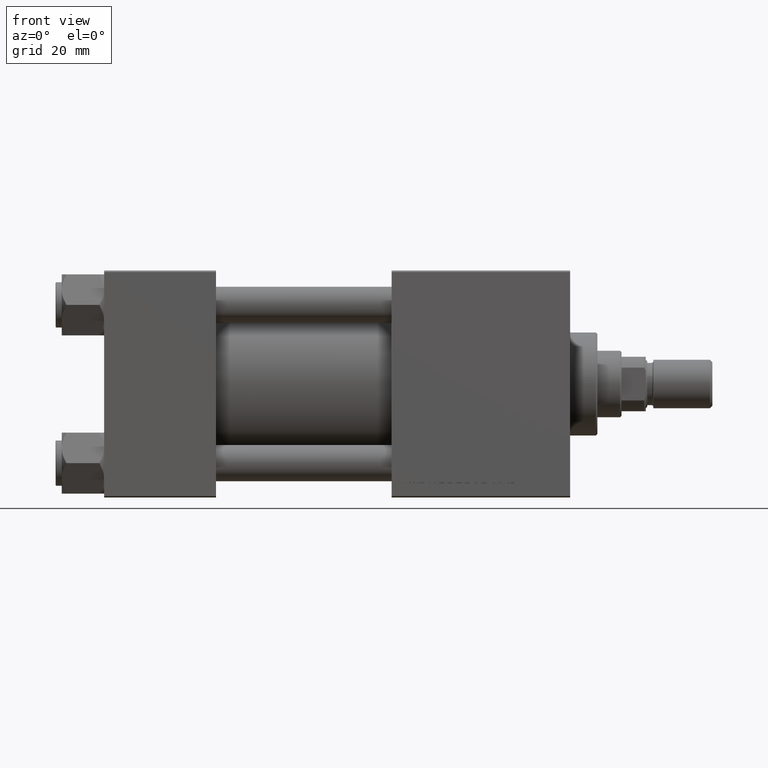
[diagram: clean part render]
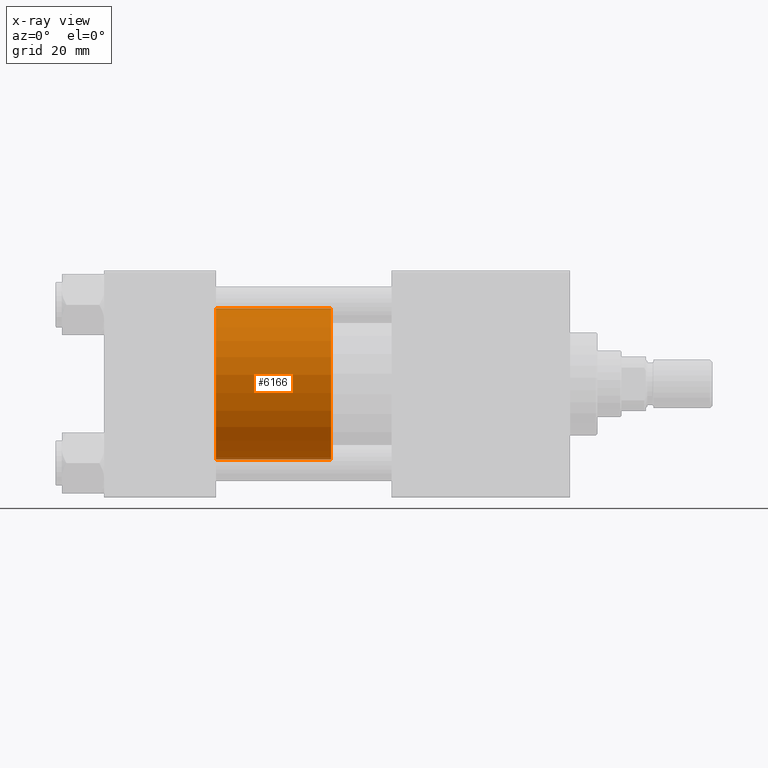
[diagram: x-ray — body ghosted, one internal face saturated and labeled with its STEP entity id]
A machine part, front view, then the same camera in x-ray: the body is ghosted and one INTERNAL B-rep face — a face not visible from any outside direction — is saturated and labeled: STEP entity #6166.
In plain terms, the highlighted cylindrical surface (partial cylindrical patch) has radius 25 mm, axis along (-1, 0, 0).
Its self-contained STEP definition (entity closure, byte-faithful):
#650 = AXIS2_PLACEMENT_3D ( 'NONE', #37878, #50179, #45312 ) ;
#6166 = ADVANCED_FACE ( 'NONE', ( #33784 ), #18951, .T. ) ;
#6189 = ORIENTED_EDGE ( 'NONE', *, *, #8106, .F. ) ;
#6243 = DIRECTION ( 'NONE',  ( 1.000000000000000000, 0.000000000000000000, 0.000000000000000000 ) ) ;
#8106 = EDGE_CURVE ( 'NONE', #43180, #11838, #35892, .T. ) ;
#8437 = LINE ( 'NONE', #20968, #43559 ) ;
#9185 = DIRECTION ( 'NONE',  ( -0.000000000000000000, -0.000000000000000000, -1.000000000000000000 ) ) ;
#11472 = DIRECTION ( 'NONE',  ( 1.000000000000000000, 0.000000000000000000, 0.000000000000000000 ) ) ;
#11600 = ORIENTED_EDGE ( 'NONE', *, *, #33072, .T. ) ;
#11838 = VERTEX_POINT ( 'NONE', #35331 ) ;
#13684 = CARTESIAN_POINT ( 'NONE',  ( 0.000000000000000000, 0.000000000000000000, 0.000000000000000000 ) ) ;
#15381 = ORIENTED_EDGE ( 'NONE', *, *, #21663, .F. ) ;
#15916 = CARTESIAN_POINT ( 'NONE',  ( 25.00000000000000000, 3.061616997868383043E-15, 0.000000000000000000 ) ) ;
#18771 = DIRECTION ( 'NONE',  ( -0.000000000000000000, -0.000000000000000000, -1.000000000000000000 ) ) ;
#18951 = CYLINDRICAL_SURFACE ( 'NONE', #650, 25.00000000000000000 ) ;
#19097 = VECTOR ( 'NONE', #18771, 1000.000000000000000 ) ;
#19158 = DIRECTION ( 'NONE',  ( 0.000000000000000000, 0.000000000000000000, 1.000000000000000000 ) ) ;
#20968 = CARTESIAN_POINT ( 'NONE',  ( -25.00000000000000000, 0.000000000000000000, 38.00000000000000000 ) ) ;
#21663 = EDGE_CURVE ( 'NONE', #11838, #32073, #8437, .T. ) ;
#25701 = DIRECTION ( 'NONE',  ( 0.000000000000000000, 0.000000000000000000, 1.000000000000000000 ) ) ;
#26688 = LINE ( 'NONE', #41551, #19097 ) ;
#27074 = CARTESIAN_POINT ( 'NONE',  ( 0.000000000000000000, 0.000000000000000000, 38.00000000000000000 ) ) ;
#28554 = EDGE_LOOP ( 'NONE', ( #6189, #11600, #43745, #15381 ) ) ;
#28702 = CIRCLE ( 'NONE', #41796, 25.00000000000000000 ) ;
#28798 = EDGE_CURVE ( 'NONE', #40391, #32073, #28702, .T. ) ;
#32073 = VERTEX_POINT ( 'NONE', #42134 ) ;
#33072 = EDGE_CURVE ( 'NONE', #43180, #40391, #26688, .T. ) ;
#33784 = FACE_OUTER_BOUND ( 'NONE', #28554, .T. ) ;
#35331 = CARTESIAN_POINT ( 'NONE',  ( -25.00000000000000000, 0.000000000000000000, 38.00000000000000000 ) ) ;
#35892 = CIRCLE ( 'NONE', #44070, 25.00000000000000000 ) ;
#37878 = CARTESIAN_POINT ( 'NONE',  ( 0.000000000000000000, 0.000000000000000000, 38.00000000000000000 ) ) ;
#40391 = VERTEX_POINT ( 'NONE', #15916 ) ;
#41551 = CARTESIAN_POINT ( 'NONE',  ( 25.00000000000000000, 3.061616997868383043E-15, 38.00000000000000000 ) ) ;
#41796 = AXIS2_PLACEMENT_3D ( 'NONE', #13684, #25701, #6243 ) ;
#42134 = CARTESIAN_POINT ( 'NONE',  ( -25.00000000000000000, 0.000000000000000000, 0.000000000000000000 ) ) ;
#43180 = VERTEX_POINT ( 'NONE', #44549 ) ;
#43559 = VECTOR ( 'NONE', #9185, 1000.000000000000000 ) ;
#43745 = ORIENTED_EDGE ( 'NONE', *, *, #28798, .T. ) ;
#44070 = AXIS2_PLACEMENT_3D ( 'NONE', #27074, #19158, #11472 ) ;
#44549 = CARTESIAN_POINT ( 'NONE',  ( 25.00000000000000000, 3.061616997868383043E-15, 38.00000000000000000 ) ) ;
#45312 = DIRECTION ( 'NONE',  ( -1.000000000000000000, 0.000000000000000000, 0.000000000000000000 ) ) ;
#50179 = DIRECTION ( 'NONE',  ( -0.000000000000000000, -0.000000000000000000, -1.000000000000000000 ) ) ;